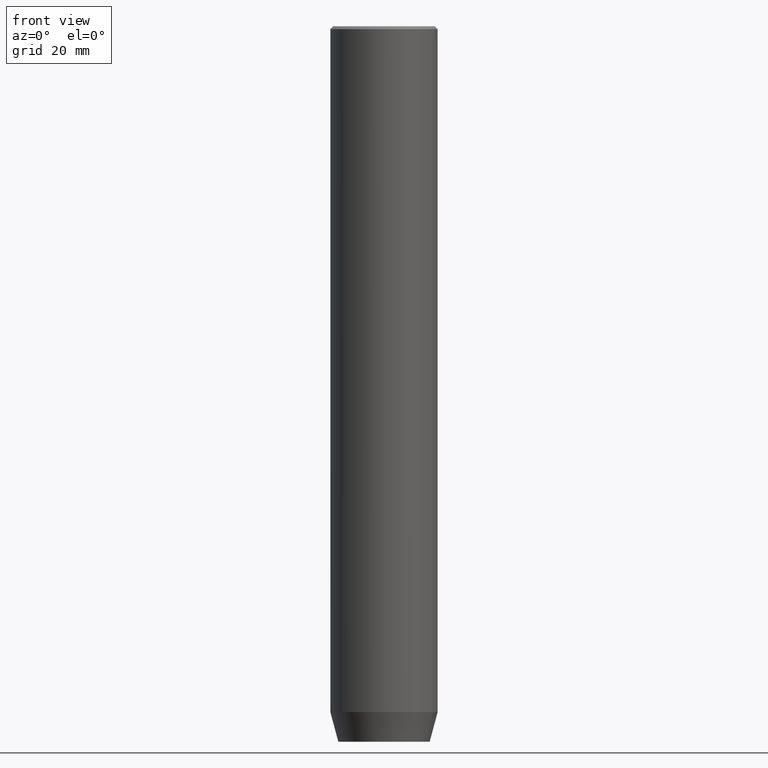
[diagram: clean part render]
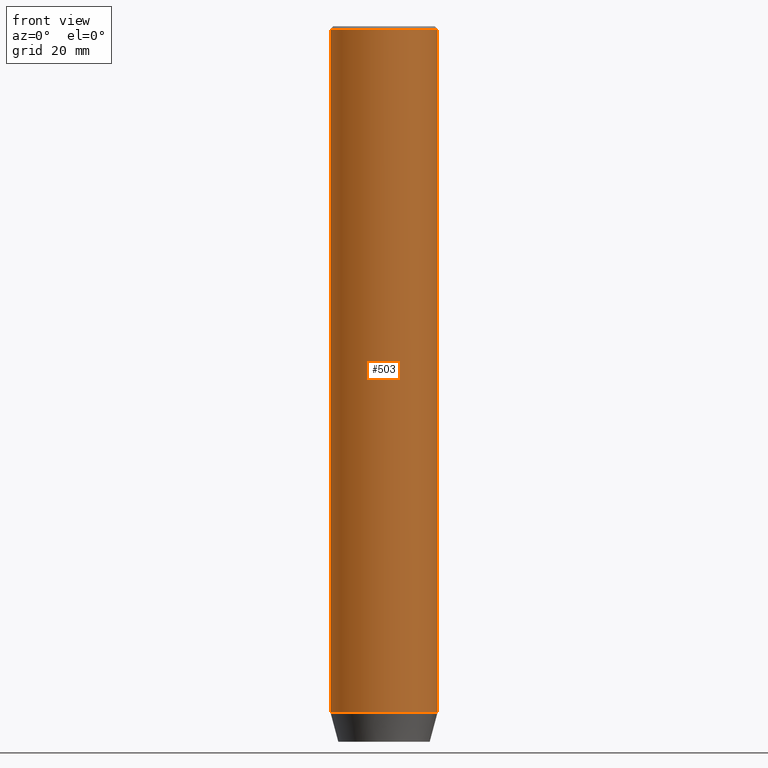
[diagram: same view with one face highlighted and labeled with its STEP entity id]
A machine part, front view. The second image highlights one B-rep face of the part: STEP entity #503.
In plain terms, the highlighted cylindrical surface (partial cylindrical patch) has radius 9 mm, axis along (-0, -0, 1).
Its self-contained STEP definition (entity closure, byte-faithful):
#6 = CIRCLE ( 'NONE', #32, 9.000000000000000000 ) ;
#13 = CARTESIAN_POINT ( 'NONE',  ( 9.000000000000000000, 0.000000000000000000, -0.4999999999999952260 ) ) ;
#32 = AXIS2_PLACEMENT_3D ( 'NONE', #525, #264, #395 ) ;
#37 = CYLINDRICAL_SURFACE ( 'NONE', #483, 9.000000000000000000 ) ;
#43 = DIRECTION ( 'NONE',  ( -0.000000000000000000, -0.000000000000000000, 1.000000000000000000 ) ) ;
#47 = DIRECTION ( 'NONE',  ( 1.000000000000000000, 0.000000000000000000, 0.000000000000000000 ) ) ;
#74 = LINE ( 'NONE', #386, #410 ) ;
#105 = VERTEX_POINT ( 'NONE', #280 ) ;
#112 = VECTOR ( 'NONE', #122, 1000.000000000000000 ) ;
#122 = DIRECTION ( 'NONE',  ( -0.000000000000000000, -0.000000000000000000, 1.000000000000000000 ) ) ;
#173 = VERTEX_POINT ( 'NONE', #13 ) ;
#175 = FACE_OUTER_BOUND ( 'NONE', #391, .T. ) ;
#203 = ORIENTED_EDGE ( 'NONE', *, *, #381, .F. ) ;
#217 = LINE ( 'NONE', #356, #112 ) ;
#223 = CARTESIAN_POINT ( 'NONE',  ( -9.000000000000000000, 1.102182119232617714E-15, -114.9999999999999858 ) ) ;
#254 = DIRECTION ( 'NONE',  ( -0.000000000000000000, -0.000000000000000000, 1.000000000000000000 ) ) ;
#264 = DIRECTION ( 'NONE',  ( 0.000000000000000000, 0.000000000000000000, -1.000000000000000000 ) ) ;
#279 = CARTESIAN_POINT ( 'NONE',  ( 9.000000000000000000, 0.000000000000000000, -114.9999999999999858 ) ) ;
#280 = CARTESIAN_POINT ( 'NONE',  ( -9.000000000000000000, 1.102182119232617714E-15, -0.4999999999999952260 ) ) ;
#314 = CARTESIAN_POINT ( 'NONE',  ( 0.000000000000000000, 0.000000000000000000, -114.9999999999999858 ) ) ;
#354 = ORIENTED_EDGE ( 'NONE', *, *, #364, .T. ) ;
#356 = CARTESIAN_POINT ( 'NONE',  ( -9.000000000000000000, 1.102182119232617714E-15, 0.000000000000000000 ) ) ;
#364 = EDGE_CURVE ( 'NONE', #173, #105, #6, .T. ) ;
#381 = EDGE_CURVE ( 'NONE', #484, #105, #217, .T. ) ;
#386 = CARTESIAN_POINT ( 'NONE',  ( 9.000000000000000000, 0.000000000000000000, 0.000000000000000000 ) ) ;
#391 = EDGE_LOOP ( 'NONE', ( #203, #555, #489, #354 ) ) ;
#392 = DIRECTION ( 'NONE',  ( 1.000000000000000000, 0.000000000000000000, 0.000000000000000000 ) ) ;
#395 = DIRECTION ( 'NONE',  ( 1.000000000000000000, 0.000000000000000000, 0.000000000000000000 ) ) ;
#398 = EDGE_CURVE ( 'NONE', #484, #465, #498, .T. ) ;
#410 = VECTOR ( 'NONE', #527, 1000.000000000000000 ) ;
#422 = EDGE_CURVE ( 'NONE', #465, #173, #74, .T. ) ;
#465 = VERTEX_POINT ( 'NONE', #279 ) ;
#483 = AXIS2_PLACEMENT_3D ( 'NONE', #501, #43, #47 ) ;
#484 = VERTEX_POINT ( 'NONE', #223 ) ;
#489 = ORIENTED_EDGE ( 'NONE', *, *, #422, .T. ) ;
#498 = CIRCLE ( 'NONE', #516, 9.000000000000000000 ) ;
#501 = CARTESIAN_POINT ( 'NONE',  ( 0.000000000000000000, 0.000000000000000000, 0.000000000000000000 ) ) ;
#503 = ADVANCED_FACE ( 'NONE', ( #175 ), #37, .T. ) ;
#516 = AXIS2_PLACEMENT_3D ( 'NONE', #314, #254, #392 ) ;
#525 = CARTESIAN_POINT ( 'NONE',  ( 0.000000000000000000, 0.000000000000000000, -0.4999999999999952260 ) ) ;
#527 = DIRECTION ( 'NONE',  ( -0.000000000000000000, -0.000000000000000000, 1.000000000000000000 ) ) ;
#555 = ORIENTED_EDGE ( 'NONE', *, *, #398, .T. ) ;